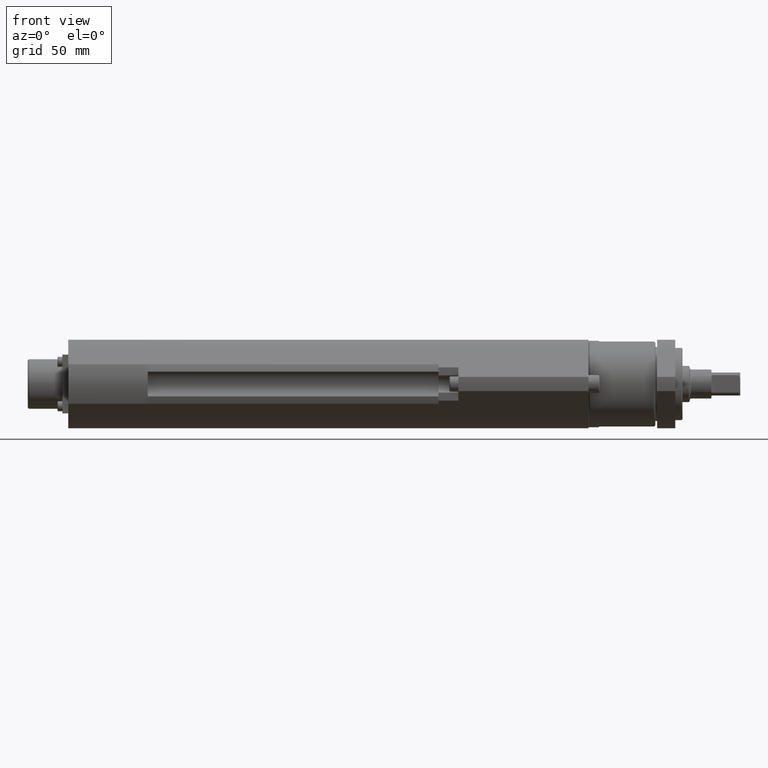
[diagram: clean part render]
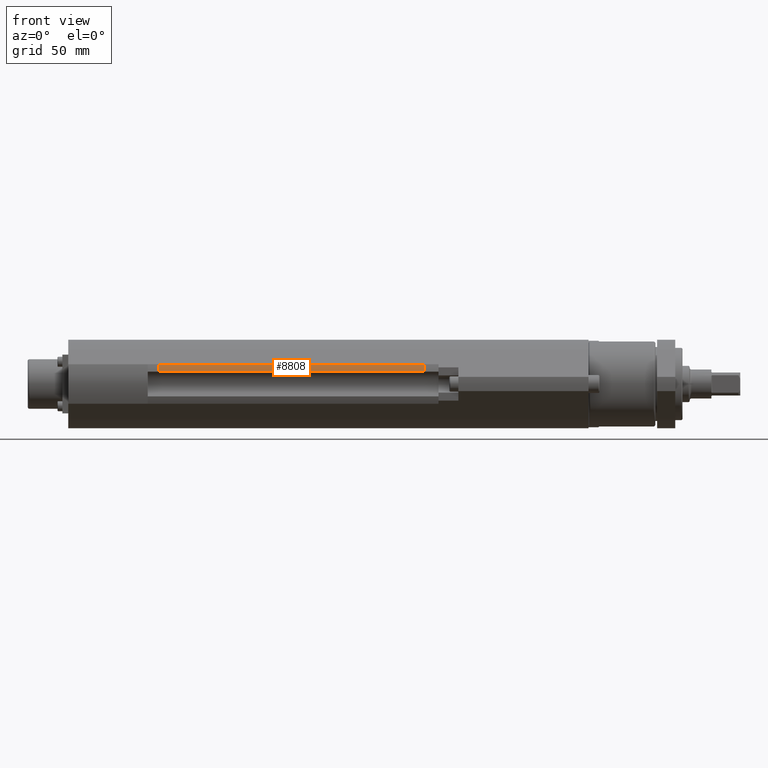
[diagram: same view with one face highlighted and labeled with its STEP entity id]
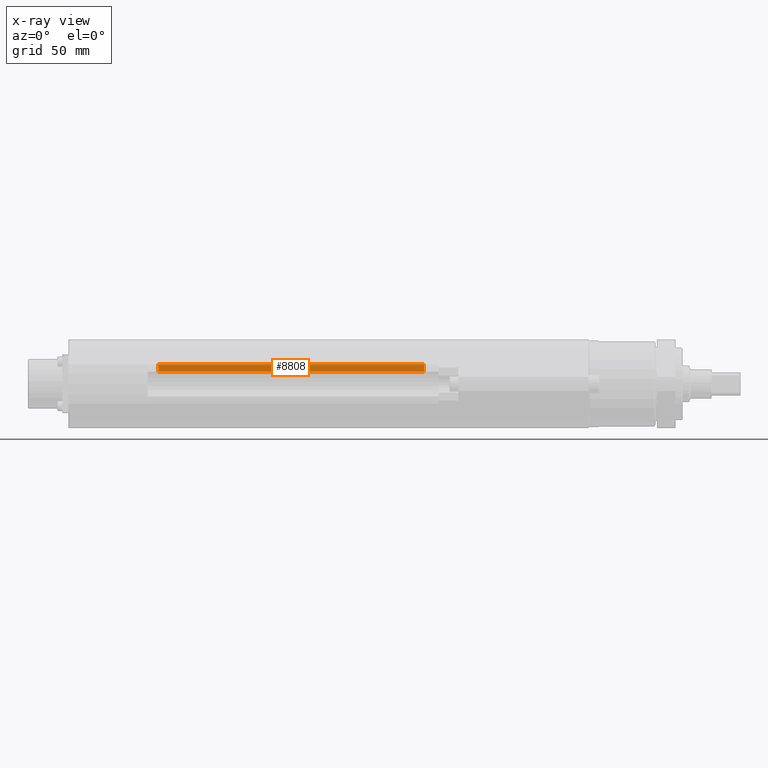
[diagram: x-ray of the same camera — body ghosted, the highlighted face saturated]
A machine part, front view. The second image highlights one B-rep face of the part: STEP entity #8808.
The next image is the same camera in x-ray: the body ghosted, the highlighted face saturated — about 0% of this face is hidden behind the body in this view.
In plain terms, the highlighted cylindrical surface (partial cylindrical patch) has radius 28 mm, axis along (1, -0, -0).
Its self-contained STEP definition (entity closure, byte-faithful):
#187 = VECTOR ( 'NONE', #5742, 1000.000000000000000 ) ;
#272 = CARTESIAN_POINT ( 'NONE',  ( -139.0000000000000000, 0.0000000000000000000, 0.0000000000000000000 ) ) ;
#311 = VERTEX_POINT ( 'NONE', #7524 ) ;
#373 = VERTEX_POINT ( 'NONE', #4149 ) ;
#429 = EDGE_CURVE ( 'NONE', #373, #4440, #8825, .T. ) ;
#999 = DIRECTION ( 'NONE',  ( 0.0000000000000000000, 0.0000000000000000000, 1.000000000000000000 ) ) ;
#1235 = EDGE_LOOP ( 'NONE', ( #7324, #2981, #7335, #8742 ) ) ;
#1522 = CARTESIAN_POINT ( 'NONE',  ( -139.0000000000000000, -25.76553998420781300, 10.96070022043246600 ) ) ;
#2066 = LINE ( 'NONE', #4288, #187 ) ;
#2301 = EDGE_CURVE ( 'NONE', #311, #6520, #2066, .T. ) ;
#2416 = AXIS2_PLACEMENT_3D ( 'NONE', #272, #5273, #999 ) ;
#2426 = CARTESIAN_POINT ( 'NONE',  ( -139.0000000000000000, -27.15151515151514500, 6.840703544010898100 ) ) ;
#2981 = ORIENTED_EDGE ( 'NONE', *, *, #429, .F. ) ;
#3189 = DIRECTION ( 'NONE',  ( 1.000000000000000000, -0.0000000000000000000, -0.0000000000000000000 ) ) ;
#3267 = AXIS2_PLACEMENT_3D ( 'NONE', #8481, #4148, #9199 ) ;
#3906 = CARTESIAN_POINT ( 'NONE',  ( -286.0000000000000600, -25.76553998420781300, 10.96070022043246600 ) ) ;
#3981 = DIRECTION ( 'NONE',  ( 0.0000000000000000000, 0.0000000000000000000, -1.000000000000000000 ) ) ;
#4148 = DIRECTION ( 'NONE',  ( -1.000000000000000000, 0.0000000000000000000, 0.0000000000000000000 ) ) ;
#4149 = CARTESIAN_POINT ( 'NONE',  ( -286.0000000000000600, -25.76553998420781300, 10.96070022043246600 ) ) ;
#4288 = CARTESIAN_POINT ( 'NONE',  ( -286.0000000000000600, -27.15151515151514500, 6.840703544010898100 ) ) ;
#4440 = VERTEX_POINT ( 'NONE', #1522 ) ;
#4997 = VECTOR ( 'NONE', #3189, 1000.000000000000000 ) ;
#5273 = DIRECTION ( 'NONE',  ( -1.000000000000000000, 0.0000000000000000000, 0.0000000000000000000 ) ) ;
#5742 = DIRECTION ( 'NONE',  ( 1.000000000000000000, -0.0000000000000000000, -0.0000000000000000000 ) ) ;
#6176 = CYLINDRICAL_SURFACE ( 'NONE', #8718, 27.99999999999999600 ) ;
#6520 = VERTEX_POINT ( 'NONE', #2426 ) ;
#6849 = CARTESIAN_POINT ( 'NONE',  ( -286.0000000000000600, 0.0000000000000000000, 0.0000000000000000000 ) ) ;
#7324 = ORIENTED_EDGE ( 'NONE', *, *, #8681, .T. ) ;
#7335 = ORIENTED_EDGE ( 'NONE', *, *, #8280, .F. ) ;
#7433 = CIRCLE ( 'NONE', #3267, 27.99999999999999600 ) ;
#7524 = CARTESIAN_POINT ( 'NONE',  ( -286.0000000000000600, -27.15151515151514500, 6.840703544010898100 ) ) ;
#7554 = CIRCLE ( 'NONE', #2416, 27.99999999999999600 ) ;
#8280 = EDGE_CURVE ( 'NONE', #311, #373, #7433, .T. ) ;
#8312 = DIRECTION ( 'NONE',  ( 1.000000000000000000, -0.0000000000000000000, -0.0000000000000000000 ) ) ;
#8339 = FACE_OUTER_BOUND ( 'NONE', #1235, .T. ) ;
#8481 = CARTESIAN_POINT ( 'NONE',  ( -286.0000000000000600, 0.0000000000000000000, 0.0000000000000000000 ) ) ;
#8681 = EDGE_CURVE ( 'NONE', #6520, #4440, #7554, .T. ) ;
#8718 = AXIS2_PLACEMENT_3D ( 'NONE', #6849, #8312, #3981 ) ;
#8742 = ORIENTED_EDGE ( 'NONE', *, *, #2301, .T. ) ;
#8808 = ADVANCED_FACE ( 'NONE', ( #8339 ), #6176, .T. ) ;
#8825 = LINE ( 'NONE', #3906, #4997 ) ;
#9199 = DIRECTION ( 'NONE',  ( 0.0000000000000000000, 0.0000000000000000000, 1.000000000000000000 ) ) ;